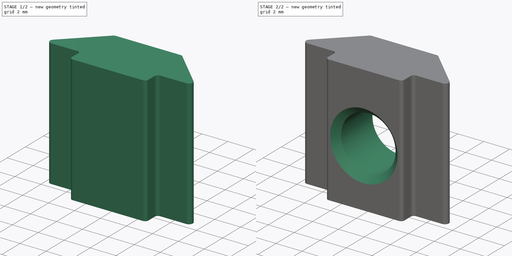
[diagram: build sequence overview — one tinted view per stage of 2, left to right]
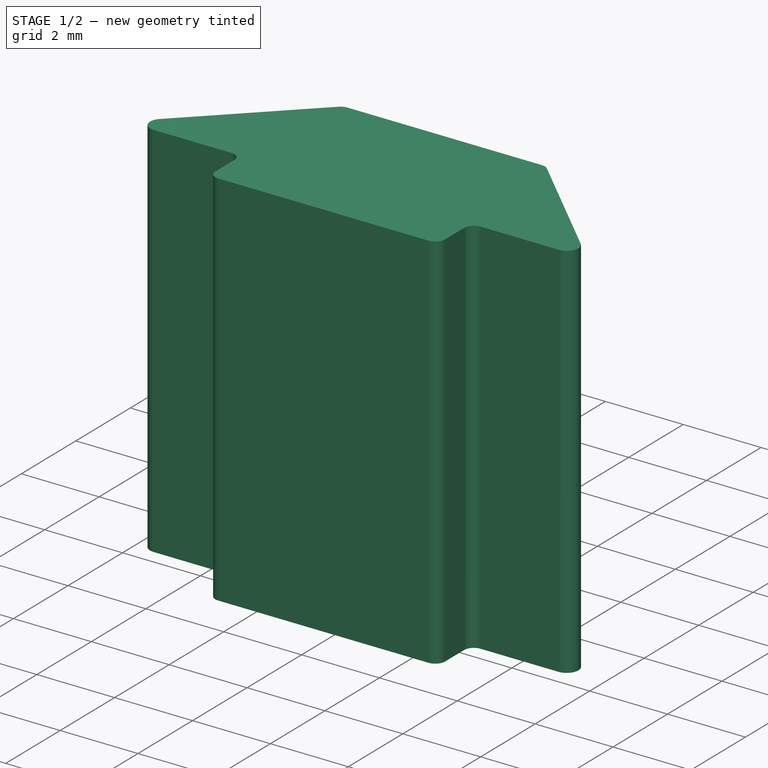
[diagram: stage 1 of 2 — iso view after this stage's code; geometry added in this stage tinted green]
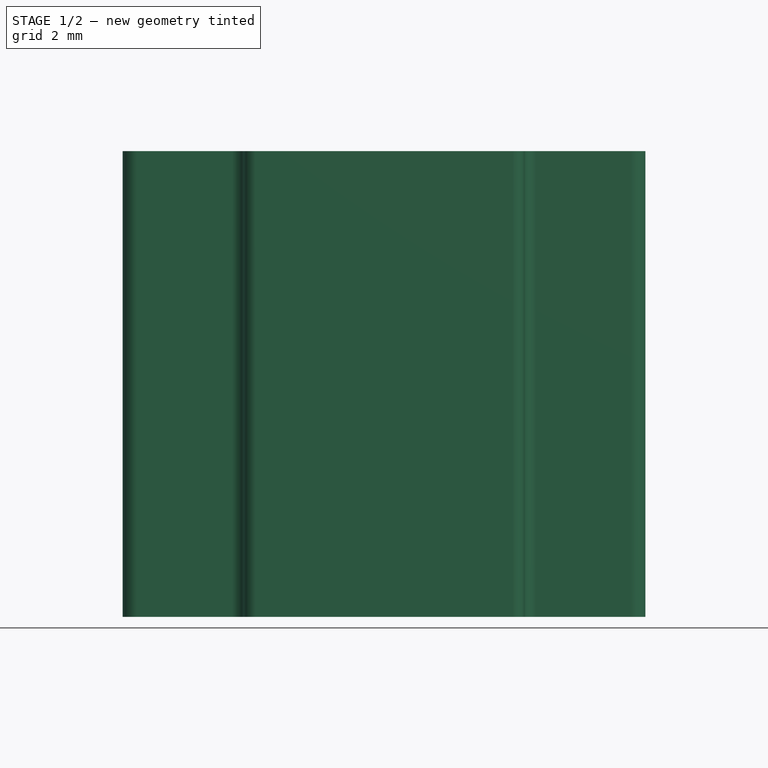
[diagram: stage 1 of 2 — front view after this stage's code; geometry added in this stage tinted green]
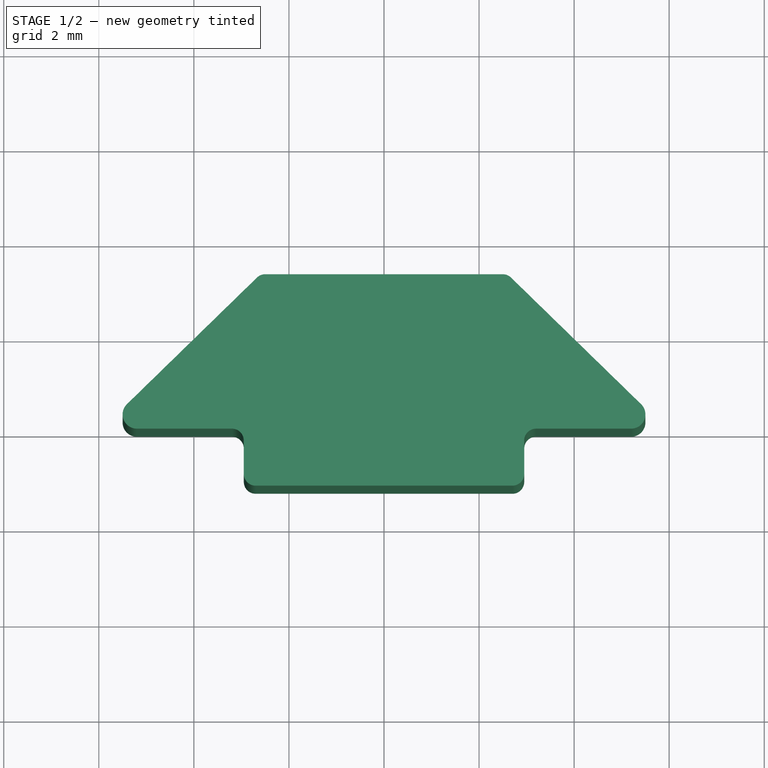
[diagram: stage 1 of 2 — top view after this stage's code; geometry added in this stage tinted green]
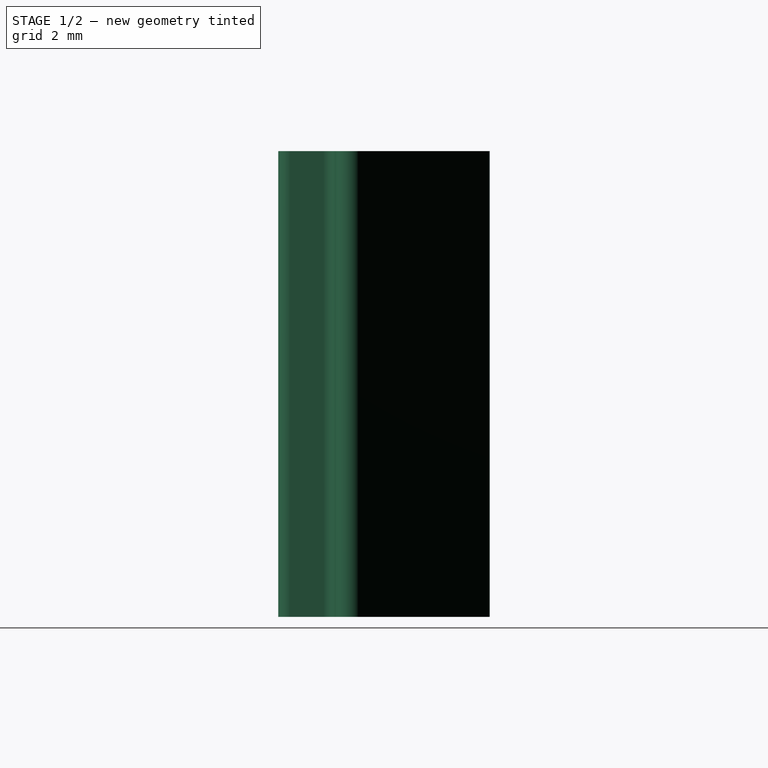
[diagram: stage 1 of 2 — right view after this stage's code; geometry added in this stage tinted green]
FCSTD DOCUMENT  (FreeCAD 0.21R38947 (Git))
Label: m5-slide-t-nut
License: All rights reserved
LicenseURL: https://en.wikipedia.org/wiki/All_rights_reserved
objects: Sketcher::SketchObject×2, PartDesign::Pad×1, PartDesign::Fillet×1, PartDesign::Pocket×1, PartDesign::Chamfer×1, PartDesign::Body×1
note: 17 computed .brp shape members not serialized (recipe doc carries the construction recipe); baked Part::Feature solids carry a one-line shape summary decoded from their .brp

FEATURE [Sketcher::SketchObject] Sketch
  ArcFitTolerance = 1e-06
  AttachmentSupport = -> [XY_Plane]
  ExternalBSplineMaxDegree = 5
  ExternalBSplineTolerance = 0.0001
  FullyConstrained = true
  InternalTolerance = 1e-06
  InvalidShape = false
  MakeInternals = false
  MapMode = 5
  Support = -> [XY_Plane]
  TreeRank = 13
  ValidateShape = false
  sketch-geometry (12):
    g0: LineSegment StartX=-5.2 StartY=0 StartZ=0 EndX=-2.95 EndY=0 EndZ=0
    g1: LineSegment StartX=-2.95 StartY=0 StartZ=0 EndX=-2.95 EndY=-1.2 EndZ=0
    g2: LineSegment StartX=-2.95 StartY=-1.2 StartZ=0 EndX=2.95 EndY=-1.2 EndZ=0
    g3: LineSegment StartX=2.95 StartY=-1.2 StartZ=0 EndX=2.95 EndY=0 EndZ=0
    g4: LineSegment StartX=2.95 StartY=0 StartZ=0 EndX=5.2 EndY=0 EndZ=0
    g5: ArcOfCircle CenterX=-5.2 CenterY=0.3 CenterZ=0 NormalX=0 NormalY=0 NormalZ=1 AngleXU=0 Radius=0.3 StartAngle=2.34281 EndAngle=4.71239
    g6: ArcOfCircle CenterX=5.2 CenterY=0.3 CenterZ=0 NormalX=0 NormalY=0 NormalZ=1 AngleXU=0 Radius=0.3 StartAngle=4.71239 EndAngle=7.08197
    g7: LineSegment StartX=-5.40927 StartY=0.514953 StartZ=0 EndX=-2.6 EndY=3.25 EndZ=0
    g8: LineSegment StartX=-2.6 StartY=3.25 StartZ=0 EndX=2.6 EndY=3.25 EndZ=0
    g9: LineSegment StartX=2.6 StartY=3.25 StartZ=0 EndX=5.40927 EndY=0.514953 EndZ=0
    g10: LineSegment [constr] StartX=-4.9 StartY=0.3 StartZ=0 EndX=-4.9 EndY=0 EndZ=0
    g11: LineSegment [constr] StartX=4.9 StartY=0.300004 StartZ=0 EndX=4.9 EndY=0 EndZ=0
  constraints (34):
    c: PointOnObject(g0,g-1)
    c: PointOnObject(g0,g-1)
    c: Coincident(g1,g0)
    c: Vertical(g1)
    c: Coincident(g2,g1)
    c: Horizontal(g2)
    c: Coincident(g3,g2)
    c: Vertical(g3)
    c: Coincident(g4,g3)
    c: Horizontal(g4)
    c: Symmetric(g0,g3,g-2)
    c: Coincident(g8,g7)
    c: Coincident(g9,g8)
    c: Symmetric(g7,g8,g-2)
    c: Tangent(g9,g6) = 1.5708
    c: Tangent(g7,g5) = 1.5708
    c: Tangent(g5,g0) = -1.5708
    c: Tangent(g6,g4) = -1.5708
    c: Equal(g5,g6)
    c: Radius(g6) = 0.3
    c: Equal(g4,g0)
    c: DistanceY(g2,g8) = 4.45
    c: DistanceX(g8,g8) = 5.2
    c: PointOnObject(g10,g5)
    c: PointOnObject(g10,g-1)
    c: Vertical(g10)
    c: Tangent(g10,g5)
    c: PointOnObject(g11,g6)
    c: PointOnObject(g11,g-1)
    c: Tangent(g11,g6)
    c: Vertical(g11)
    c: DistanceX(g10,g11) = 9.8
    c: DistanceX(g2,g2) = 5.9
    c: DistanceY(g3,g3) = 1.2
FEATURE [PartDesign::Pad] Pad
  AddSubType = 0
  AlongSketchNormal = false
  AutoTaperInnerAngle = true
  CheckUpToFaceLimits = true
  ClaimChildren = false
  Direction = (0,0,1)
  Fit = 0
  FitJoin = 0
  InnerFit = 0
  InnerFitJoin = 0
  InvalidShape = false
  Length = 9.8
  Length2 = 10
  Linearize = true
  NewSolid = false
  Profile = -> Sketch
  ReferenceAxis = -> Sketch [N_Axis]
  Suppress = false
  TaperInnerAngle = 0
  TaperInnerAngleRev = 0
  TreeRank = 14
  Type = 0
  ValidateShape = true
  _ProfileBasedVersion = 1
FEATURE [PartDesign::Fillet] Fillet
  AddSubType = 0
  Base = -> Pad [Edge11,Edge8,Edge5,Edge2,Edge23,Edge20]
  BaseFeature = -> Pad
  InvalidShape = false
  NewSolid = false
  Radius = 0.25
  SupportTransform = false
  Suppress = false
  TreeRank = 15
  UseAllEdges = false
  ValidateShape = true
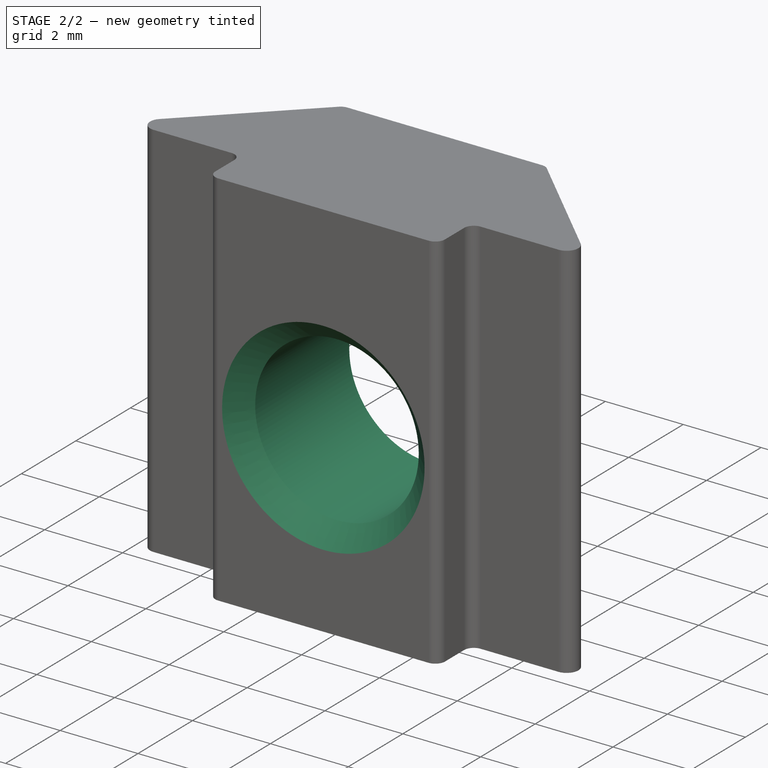
[diagram: stage 2 of 2 — iso view after this stage's code; geometry added in this stage tinted green]
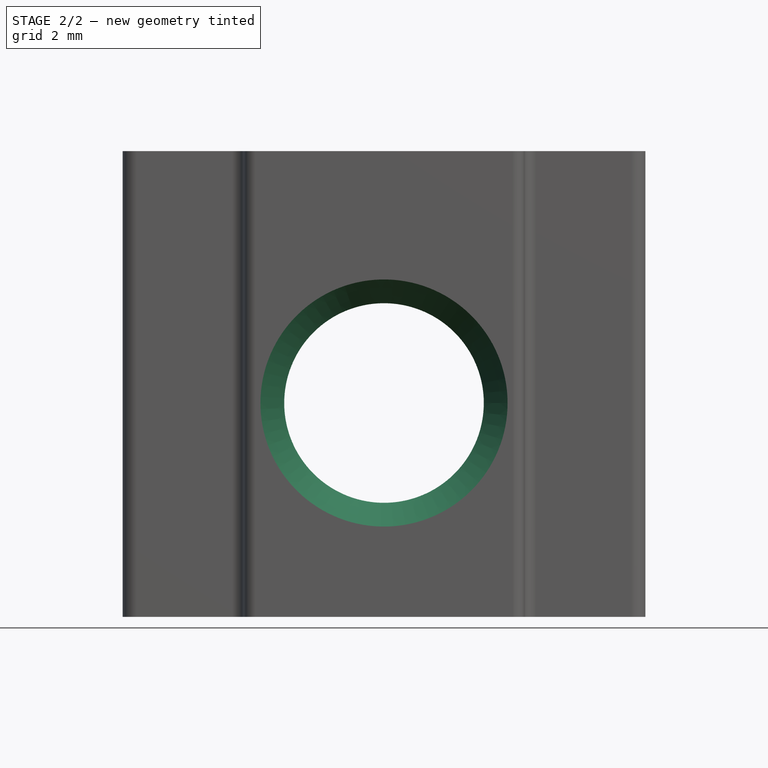
[diagram: stage 2 of 2 — front view after this stage's code; geometry added in this stage tinted green]
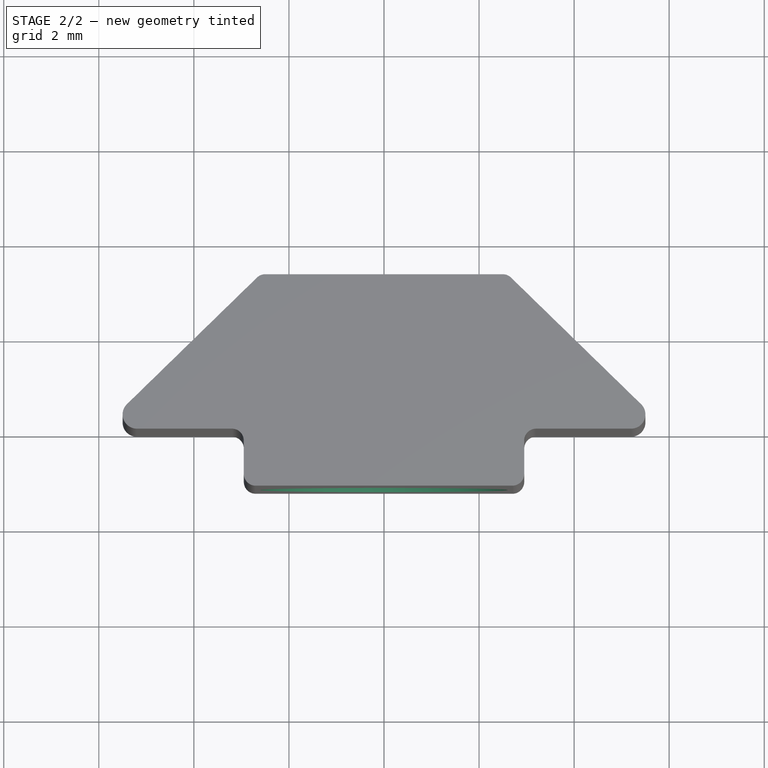
[diagram: stage 2 of 2 — top view after this stage's code; geometry added in this stage tinted green]
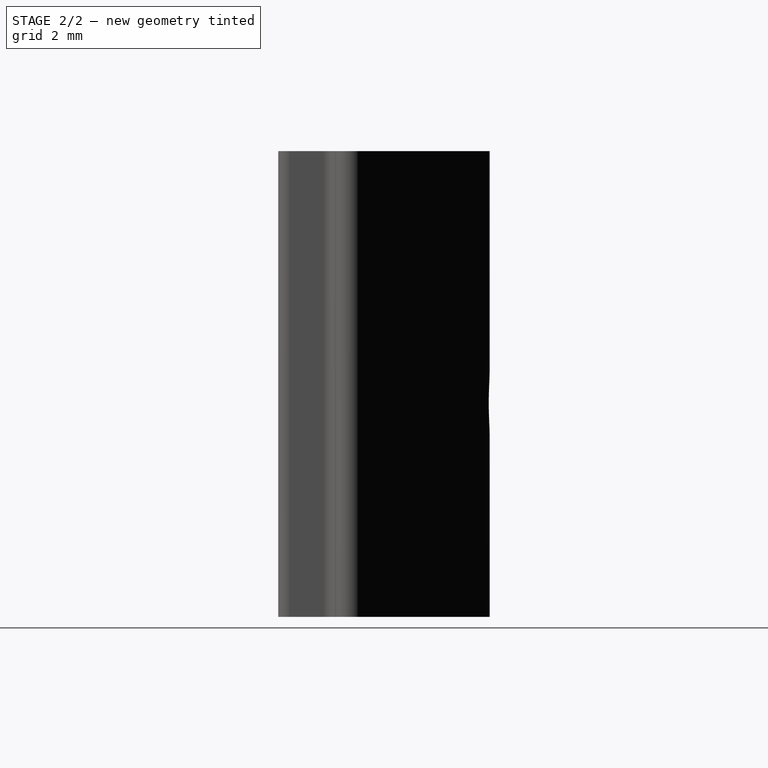
[diagram: stage 2 of 2 — right view after this stage's code; geometry added in this stage tinted green]
FEATURE [Sketcher::SketchObject] Sketch001
  ArcFitTolerance = 1e-06
  AttachmentSupport = -> [Fillet]
  ExternalBSplineMaxDegree = 5
  ExternalBSplineTolerance = 0.0001
  FullyConstrained = true
  InternalTolerance = 1e-06
  InvalidShape = false
  MakeInternals = false
  MapMode = 5
  Placement = pos=(0,-1.2,0) rot=(1,0,0;1.5708rad)
  Support = -> [Fillet]
  TreeRank = 16
  ValidateShape = false
  sketch-geometry (3):
    g0: Circle [constr] CenterX=0 CenterY=4.5 CenterZ=0 NormalX=0 NormalY=0 NormalZ=1 AngleXU=0 Radius=2.9
    g1: LineSegment [constr] StartX=0 StartY=0 StartZ=0 EndX=0 EndY=1.6 EndZ=0
    g2: Circle CenterX=0 CenterY=4.5 CenterZ=0 NormalX=0 NormalY=0 NormalZ=1 AngleXU=0 Radius=2.1
  constraints (8):
    c: PointOnObject(g0,g-2)
    c: Diameter(g0) = 5.8
    c: Coincident(g1,g-1)
    c: PointOnObject(g1,g0)
    c: Vertical(g1)
    c: DistanceY(g1,g1) = 1.6
    c: Coincident(g2,g0)
    c: Diameter(g2) = 4.2
FEATURE [PartDesign::Pocket] Pocket
  AddSubType = 1
  AlongSketchNormal = false
  AutoTaperInnerAngle = true
  BaseFeature = -> Fillet
  CheckUpToFaceLimits = true
  ClaimChildren = false
  Direction = (0,1,-2e-16)
  Fit = 0
  FitJoin = 0
  InnerFit = 0
  InnerFitJoin = 0
  InvalidShape = false
  Length = 5
  Length2 = 10
  Linearize = true
  NewSolid = false
  Profile = -> Sketch001
  ReferenceAxis = -> Sketch001 [N_Axis]
  Suppress = false
  TaperInnerAngle = 0
  TaperInnerAngleRev = 0
  TreeRank = 17
  Type = 1
  ValidateShape = true
  _ProfileBasedVersion = 1
  _Version = 1
FEATURE [PartDesign::Chamfer] Chamfer
  AddSubType = 0
  Angle = 45
  Base = -> Pocket [Face19]
  BaseFeature = -> Pocket
  ChamferType = 0
  FlipDirection = false
  InvalidShape = false
  NewSolid = false
  Size = 0.5
  Size2 = 1
  SupportTransform = false
  Suppress = false
  TreeRank = 18
  UseAllEdges = false
  ValidateShape = true
FEATURE [PartDesign::Body] Body  label="m5-slide-t-nut"
  AutoGroupSolids = false
  ClaimAllChildren = false
  ExportMode = 0
  Group = -> [Sketch,Pad,Fillet,Sketch001,Pocket,Chamfer]
  InvalidShape = false
  Origin = -> Origin
  Tip = -> Chamfer
  TreeRank = 12
  ValidateShape = false
  _ExportChildren = -> [Pad,Fillet,Pocket,Chamfer]
  _GroupVersion = 1
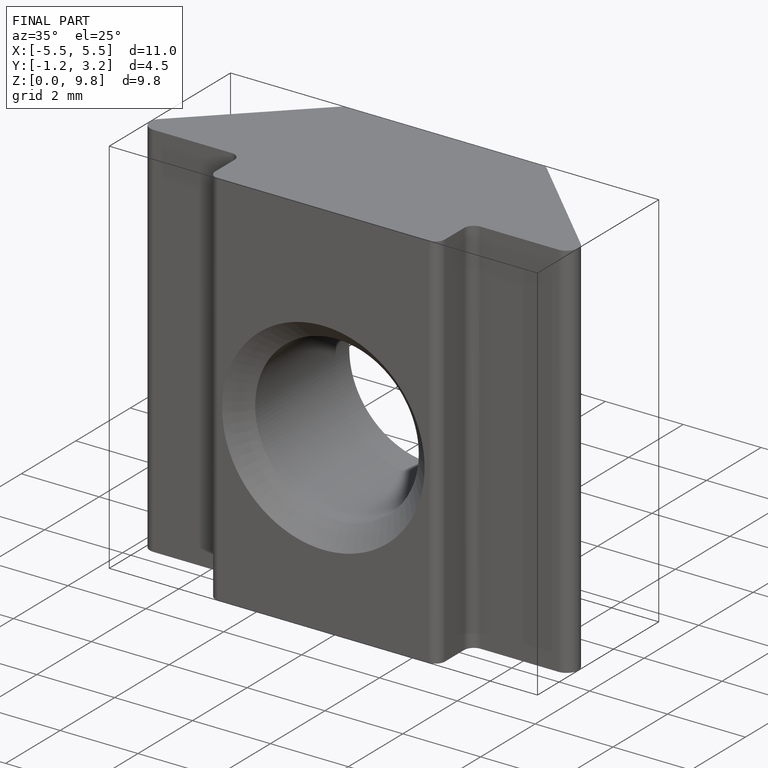
[diagram: finished part — iso view with bounding-box wireframe]
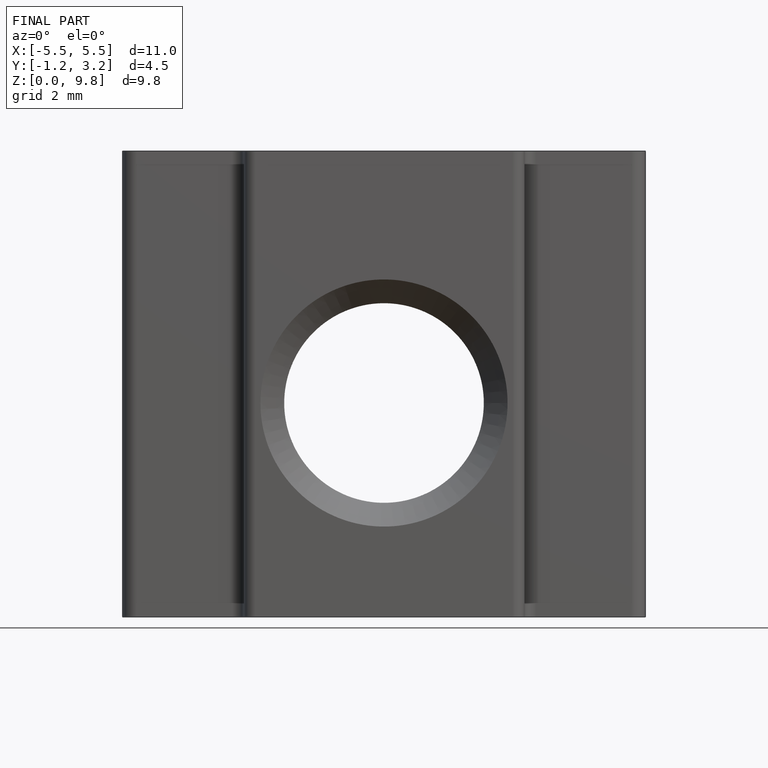
[diagram: finished part — front view with bounding-box wireframe]
